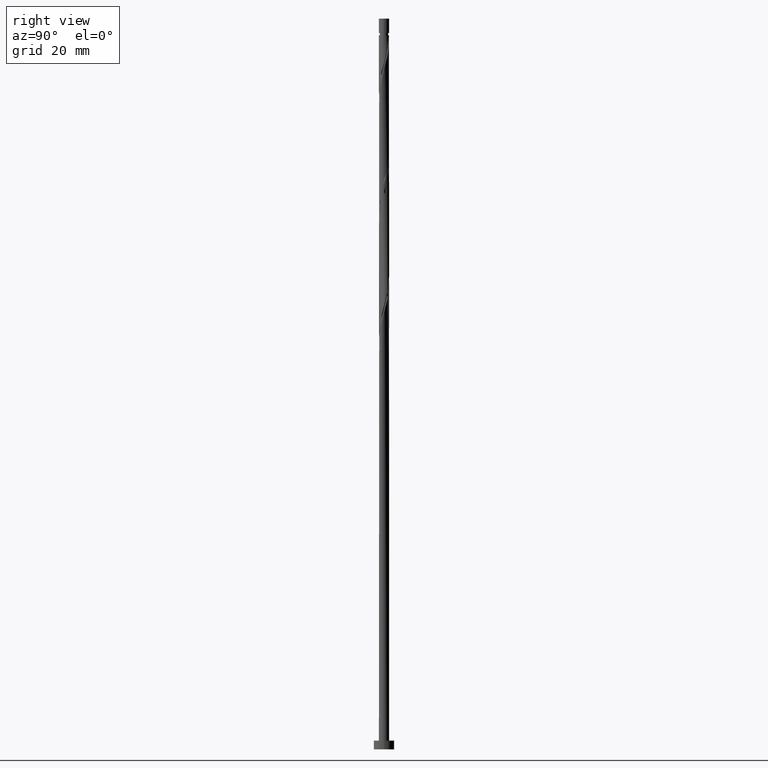
[diagram: clean part render]
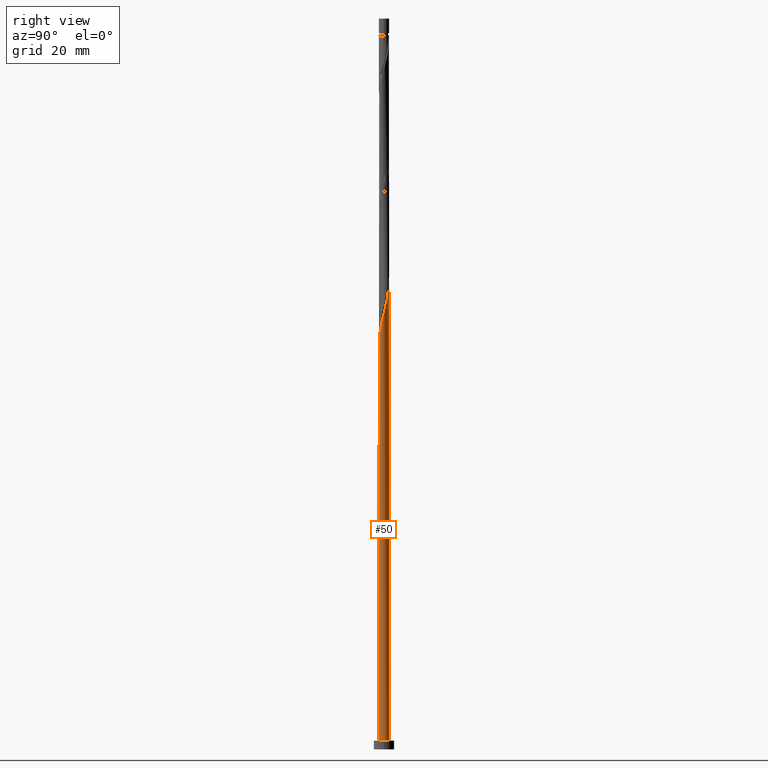
[diagram: same view with one face highlighted and labeled with its STEP entity id]
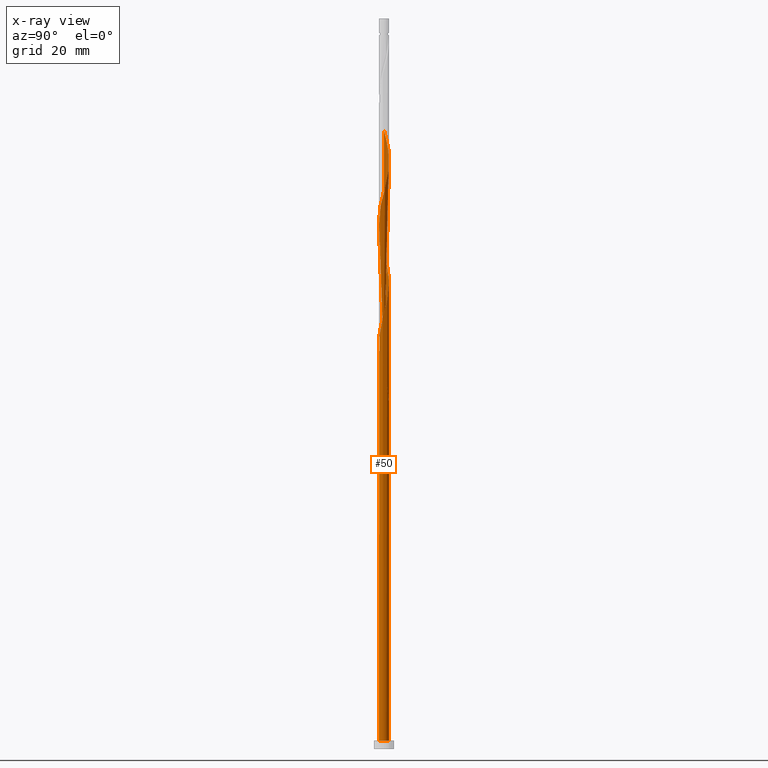
[diagram: x-ray of the same camera — body ghosted, the highlighted face saturated]
A machine part, right view. The second image highlights one B-rep face of the part: STEP entity #50.
The next image is the same camera in x-ray: the body ghosted, the highlighted face saturated — about 0% of this face is hidden behind the body in this view.
In plain terms, the highlighted cylindrical surface (bore or boss wall) has radius 1.75 mm, axis along (-0, -0, -1).
Its self-contained STEP definition (entity closure, byte-faithful):
#6 = FACE_OUTER_BOUND ( 'NONE', #1176, .T. ) ;
#7 = CARTESIAN_POINT ( 'NONE',  ( 1.270091953611735880, -1.222504715543140774, 144.1536403940529567 ) ) ;
#10 = AXIS2_PLACEMENT_3D ( 'NONE', #86, #376, #1649 ) ;
#14 = CARTESIAN_POINT ( 'NONE',  ( -1.727042448915866224, 0.2825320860410301393, 168.9933839837966048 ) ) ;
#21 = CARTESIAN_POINT ( 'NONE',  ( 1.213591279746393026, 1.260831553270904237, 154.5703070607196707 ) ) ;
#28 = CARTESIAN_POINT ( 'NONE',  ( 0.2846071929171890003, 1.739727017636470974, 158.5767173171299476 ) ) ;
#34 = CARTESIAN_POINT ( 'NONE',  ( -0.7485525829283007360, 1.581824589071549880, 162.5831275735401675 ) ) ;
#38 = ORIENTED_EDGE ( 'NONE', *, *, #1209, .F. ) ;
#44 = CARTESIAN_POINT ( 'NONE',  ( -0.3482456029873183811, 1.715000000000001856, 202.6472301376427083 ) ) ;
#50 = ADVANCED_FACE ( 'NONE', ( #6 ), #365, .T. ) ;
#55 = CARTESIAN_POINT ( 'NONE',  ( -0.4886440724827074145, -1.680394885265818372, 178.6087685991812180 ) ) ;
#62 = CARTESIAN_POINT ( 'NONE',  ( -1.727042448915866224, 0.2825320860410301393, 127.3267173171299049 ) ) ;
#63 = CARTESIAN_POINT ( 'NONE',  ( 0.9406208616431048775, -1.490933849906250108, 184.2177429581555259 ) ) ;
#76 = ORIENTED_EDGE ( 'NONE', *, *, #1106, .T. ) ;
#86 = CARTESIAN_POINT ( 'NONE',  ( 0.000000000000000000, 0.000000000000000000, 3.000000000000000000 ) ) ;
#132 = CARTESIAN_POINT ( 'NONE',  ( -1.480063263495110526, -0.9337626765148684393, 132.1344096248222684 ) ) ;
#138 = DIRECTION ( 'NONE',  ( -1.000000000000000000, 0.000000000000000000, 0.000000000000000000 ) ) ;
#139 = CARTESIAN_POINT ( 'NONE',  ( 0.5564843042134953732, -1.672715328236850096, 140.9485121889247523 ) ) ;
#146 = CARTESIAN_POINT ( 'NONE',  ( -1.744472087975769359, -0.1389860938132595758, 170.5959480863606927 ) ) ;
#154 = CARTESIAN_POINT ( 'NONE',  ( -1.692736842704841704, 0.4922330052974239756, 209.8587685991811327 ) ) ;
#155 = CARTESIAN_POINT ( 'NONE',  ( -1.213591279746392804, -1.260831553270904459, 133.7369737273863279 ) ) ;
#159 = VERTEX_POINT ( 'NONE', #1321 ) ;
#162 = CARTESIAN_POINT ( 'NONE',  ( -1.105356407627421156, 1.356719282724694997, 205.8523583427709980 ) ) ;
#163 = CARTESIAN_POINT ( 'NONE',  ( 0.4886440724827083026, 1.680394885265818372, 157.7754352658478751 ) ) ;
#172 = CARTESIAN_POINT ( 'NONE',  ( 1.060498612039037392, 1.408188213278951606, 197.0382557786683151 ) ) ;
#184 = CARTESIAN_POINT ( 'NONE',  ( 1.525749917832862179, -0.8830280507365014797, 187.4228711632837587 ) ) ;
#196 = CARTESIAN_POINT ( 'NONE',  ( 0.5564843042134953732, -1.672715328236850096, 182.6151788555914095 ) ) ;
#199 = VERTEX_POINT ( 'NONE', #496 ) ;
#216 = VERTEX_POINT ( 'NONE', #1150 ) ;
#223 =( BOUNDED_CURVE ( )  B_SPLINE_CURVE ( 2, ( #1706, #1697, #626, #502, #1679, #788, #386, #511, #1034, #494, #1717, #771, #910, #1558, #1583, #894, #1450 ),
 .UNSPECIFIED., .F., .F. ) 
 B_SPLINE_CURVE_WITH_KNOTS ( ( 3, 2, 2, 2, 2, 2, 2, 2, 3 ),
 ( 0.9295271625973833274, 0.9326923076923077094, 0.9423076923076922906, 0.9519230769230768718, 0.9615384615384615641, 0.9711538461538461453, 0.9807692307692307265, 0.9903846153846154188, 1.000000000000000000 ),
 .UNSPECIFIED. ) 
 CURVE ( )  GEOMETRIC_REPRESENTATION_ITEM ( )  RATIONAL_B_SPLINE_CURVE ( ( 0.9061636035683048318, 0.9069090390690934811, 0.9090909090909500279, 0.9024626128164534578, 0.9090909090909500279, 0.9024626128164534578, 0.9090909090909500279, 0.9024626128164534578, 0.9090909090909500279, 0.9024626128164534578, 0.9090909090909500279, 0.9024626128164534578, 0.9090909090909500279, 0.9024626128164534578, 0.9090909090909500279, 0.9024626128164534578, 0.9090909090909500279 ) ) 
 REPRESENTATION_ITEM ( '' )  );
#257 = LINE ( 'NONE', #378, #1202 ) ;
#276 = CARTESIAN_POINT ( 'NONE',  ( 0.07230014557802495745, 1.748505844699812517, 159.3779993684119916 ) ) ;
#283 = CARTESIAN_POINT ( 'NONE',  ( -1.692736842704841704, 0.4922330052974239756, 168.1921019325145039 ) ) ;
#287 = VERTEX_POINT ( 'NONE', #879 ) ;
#292 = CARTESIAN_POINT ( 'NONE',  ( -1.750000000000002220, -1.824624501060920132E-15, 128.4026415950841624 ) ) ;
#293 = CARTESIAN_POINT ( 'NONE',  ( -1.366683947453748882, -1.113474893262856202, 174.6023583427709127 ) ) ;
#302 = CARTESIAN_POINT ( 'NONE',  ( -1.660519350180560405, -0.5524269070890180933, 172.1985121889247807 ) ) ;
#309 = CARTESIAN_POINT ( 'NONE',  ( -1.750000000000002442, 0.1421987674398286494, 211.1962741910691364 ) ) ;
#310 = CARTESIAN_POINT ( 'NONE',  ( 0.7485525829283004029, -1.581824589071549880, 141.7497942402068816 ) ) ;
#313 = ORIENTED_EDGE ( 'NONE', *, *, #651, .F. ) ;
#318 = CARTESIAN_POINT ( 'NONE',  ( -0.9406208616431052105, 1.490933849906250108, 205.0510762914888687 ) ) ;
#328 = CARTESIAN_POINT ( 'NONE',  ( 0.6926809520482259952, 1.621062752895165771, 198.6408198812324315 ) ) ;
#329 = DIRECTION ( 'NONE',  ( -0.000000000000000000, -0.000000000000000000, -1.000000000000000000 ) ) ;
#350 = ORIENTED_EDGE ( 'NONE', *, *, #851, .F. ) ;
#365 = CYLINDRICAL_SURFACE ( 'NONE', #1701, 1.750000000000000000 ) ;
#376 = DIRECTION ( 'NONE',  ( 0.000000000000000000, 0.000000000000000000, 1.000000000000000000 ) ) ;
#378 = CARTESIAN_POINT ( 'NONE',  ( -1.750000000000000000, 0.000000000000000000, 250.0000000000000000 ) ) ;
#381 = CARTESIAN_POINT ( 'NONE',  ( 0.000000000000000000, 0.000000000000000000, 119.3138968043094224 ) ) ;
#386 = CARTESIAN_POINT ( 'NONE',  ( -1.480063263495108306, 0.9337626765148677732, 127.3267173171299049 ) ) ;
#397 = AXIS2_PLACEMENT_3D ( 'NONE', #937, #699, #946 ) ;
#404 = CARTESIAN_POINT ( 'NONE',  ( 1.727042448915866224, -0.2825320860410303059, 148.1600506504632904 ) ) ;
#410 = CARTESIAN_POINT ( 'NONE',  ( -1.366683947453748882, -1.113474893262856202, 132.9356916761042555 ) ) ;
#417 = CARTESIAN_POINT ( 'NONE',  ( -1.727596120824647974, -0.3508033544111553992, 171.3972301376427367 ) ) ;
#423 = CIRCLE ( 'NONE', #397, 1.750000000000000000 ) ;
#428 = CARTESIAN_POINT ( 'NONE',  ( 1.761348055126890078, -0.07283116678463578963, 148.9613327017453059 ) ) ;
#431 = ORIENTED_EDGE ( 'NONE', *, *, #651, .T. ) ;
#435 = CARTESIAN_POINT ( 'NONE',  ( -1.525749917832862623, 0.8830280507365010356, 166.5895378299503875 ) ) ;
#442 = CARTESIAN_POINT ( 'NONE',  ( -1.525749917832862623, 0.8830280507365010356, 124.9228711632837445 ) ) ;
#443 = CARTESIAN_POINT ( 'NONE',  ( 1.366683947453749326, 1.113474893262855092, 195.4356916761042271 ) ) ;
#446 = ORIENTED_EDGE ( 'NONE', *, *, #1270, .F. ) ;
#452 = CARTESIAN_POINT ( 'NONE',  ( -1.692736842704841704, 0.4922330052974239756, 126.5254352658478325 ) ) ;
#453 = CARTESIAN_POINT ( 'NONE',  ( 1.593442579536471948, 0.7540504597668808984, 193.8331275735401107 ) ) ;
#466 = EDGE_CURVE ( 'NONE', #199, #1366, #1145, .T. ) ;
#482 = AXIS2_PLACEMENT_3D ( 'NONE', #381, #1313, #901 ) ;
#494 = CARTESIAN_POINT ( 'NONE',  ( -1.060498612039034283, 1.408188213278950718, 124.9228711632837445 ) ) ;
#496 = CARTESIAN_POINT ( 'NONE',  ( -1.750000000000000000, 0.000000000000000000, 3.000000000000000000 ) ) ;
#502 = CARTESIAN_POINT ( 'NONE',  ( -1.727596120824645975, 0.3508033544111552882, 129.7305634709760511 ) ) ;
#511 = CARTESIAN_POINT ( 'NONE',  ( -1.366683947453746883, 1.113474893262854870, 126.5254352658478609 ) ) ;
#537 = CARTESIAN_POINT ( 'NONE',  ( -0.2846071929171888337, -1.739727017636470974, 137.7433839837966048 ) ) ;
#542 = CARTESIAN_POINT ( 'NONE',  ( -1.761348055126890078, 0.07283116678463590066, 169.7946660350785635 ) ) ;
#547 = CARTESIAN_POINT ( 'NONE',  ( -0.4886440724827074145, -1.680394885265818372, 136.9421019325145608 ) ) ;
#553 = CARTESIAN_POINT ( 'NONE',  ( -1.750000000000002665, -2.019051701993640766E-16, 211.7359749284175336 ) ) ;
#554 = CARTESIAN_POINT ( 'NONE',  ( -0.8765897820436314714, -1.514625483087058910, 177.0062044966170163 ) ) ;
#562 = CARTESIAN_POINT ( 'NONE',  ( 1.609243380268852386, -0.6876305280169626721, 146.5574865478992024 ) ) ;
#569 = CARTESIAN_POINT ( 'NONE',  ( -0.5564843042134957063, 1.672715328236850096, 203.4485121889247523 ) ) ;
#579 = CARTESIAN_POINT ( 'NONE',  ( 1.761348055126890078, -0.07283116678463578963, 190.6279993684119916 ) ) ;
#583 = ORIENTED_EDGE ( 'NONE', *, *, #950, .F. ) ;
#590 = CARTESIAN_POINT ( 'NONE',  ( 1.397920935722299252, -1.052766383139821516, 186.6215891120017432 ) ) ;
#626 = CARTESIAN_POINT ( 'NONE',  ( -1.744472087975766694, 0.1389860938132602142, 130.5318455222581235 ) ) ;
#643 = ORIENTED_EDGE ( 'NONE', *, *, #466, .T. ) ;
#651 = EDGE_CURVE ( 'NONE', #1246, #199, #719, .T. ) ;
#659 = CARTESIAN_POINT ( 'NONE',  ( 0.9406208616431048775, -1.490933849906250108, 142.5510762914888687 ) ) ;
#667 = CARTESIAN_POINT ( 'NONE',  ( 1.727596120824647974, 0.3508033544111552327, 150.5638968043093939 ) ) ;
#676 = CARTESIAN_POINT ( 'NONE',  ( -1.660519350180560405, -0.5524269070890180933, 130.5318455222580951 ) ) ;
#685 = CARTESIAN_POINT ( 'NONE',  ( 1.525749917832862179, -0.8830280507365014797, 145.7562044966170731 ) ) ;
#690 = CARTESIAN_POINT ( 'NONE',  ( -1.727042448915866224, 0.2825320860410301393, 210.6600506504632335 ) ) ;
#691 = CARTESIAN_POINT ( 'NONE',  ( -0.5564843042134957063, 1.672715328236850096, 161.7818455222581235 ) ) ;
#699 = DIRECTION ( 'NONE',  ( 0.000000000000000000, 0.000000000000000000, 1.000000000000000000 ) ) ;
#700 = CARTESIAN_POINT ( 'NONE',  ( -0.1400069017611407229, 1.757284671763154282, 201.8459480863606927 ) ) ;
#708 = CARTESIAN_POINT ( 'NONE',  ( 1.692736842704841704, -0.4922330052974249748, 189.0254352658478467 ) ) ;
#717 = CARTESIAN_POINT ( 'NONE',  ( -0.5564843042134957063, 1.672715328236850096, 120.1151788555914521 ) ) ;
#718 = CARTESIAN_POINT ( 'NONE',  ( 0.1400069017611409727, -1.757284671763154282, 181.0126147530273215 ) ) ;
#719 = LINE ( 'NONE', #1517, #863 ) ;
#747 = DIRECTION ( 'NONE',  ( -0.000000000000000000, -0.000000000000000000, -1.000000000000000000 ) ) ;
#771 = CARTESIAN_POINT ( 'NONE',  ( -0.6926809520482244409, 1.621062752895163994, 123.3203070607196423 ) ) ;
#788 = CARTESIAN_POINT ( 'NONE',  ( -1.593442579536469728, 0.7540504597668805653, 128.1279993684119631 ) ) ;
#795 = CARTESIAN_POINT ( 'NONE',  ( -0.3482456029873183811, 1.715000000000001856, 160.9805634709760227 ) ) ;
#802 = CARTESIAN_POINT ( 'NONE',  ( -0.6926809520482259952, -1.621062752895165771, 136.1408198812324883 ) ) ;
#810 = CARTESIAN_POINT ( 'NONE',  ( -1.213591279746392804, -1.260831553270904459, 175.4036403940529851 ) ) ;
#819 = CARTESIAN_POINT ( 'NONE',  ( -1.270091953611735880, 1.222504715543140552, 164.9869737273862995 ) ) ;
#827 = CARTESIAN_POINT ( 'NONE',  ( 1.105356407627421156, -1.356719282724694997, 143.3523583427709696 ) ) ;
#837 = CARTESIAN_POINT ( 'NONE',  ( -1.609243380268852386, 0.6876305280169626721, 125.7241532145658454 ) ) ;
#838 = CARTESIAN_POINT ( 'NONE',  ( 0.7485525829283004029, -1.581824589071549880, 183.4164609068734819 ) ) ;
#848 = CARTESIAN_POINT ( 'NONE',  ( 1.105356407627421156, -1.356719282724694997, 185.0190250094376836 ) ) ;
#851 = EDGE_CURVE ( 'NONE', #287, #1404, #223, .T. ) ;
#863 = VECTOR ( 'NONE', #329, 1000.000000000000000 ) ;
#878 = CARTESIAN_POINT ( 'NONE',  ( 0.000000000000000000, 0.000000000000000000, 250.0000000000000000 ) ) ;
#879 = CARTESIAN_POINT ( 'NONE',  ( -1.749999999999999556, -2.407906103859098896E-15, 131.0584853468679398 ) ) ;
#894 = CARTESIAN_POINT ( 'NONE',  ( 0.1400069017611417777, 1.757284671763150952, 120.1151788555914237 ) ) ;
#901 = DIRECTION ( 'NONE',  ( 0.000000000000000000, 1.000000000000000000, -2.379049338482478211E-14 ) ) ;
#905 = EDGE_CURVE ( 'NONE', #216, #1404, #1284, .T. ) ;
#910 = CARTESIAN_POINT ( 'NONE',  ( -0.4886440724827061377, 1.680394885265816152, 122.5190250094376125 ) ) ;
#912 = CARTESIAN_POINT ( 'NONE',  ( 0.3482456029873189918, 1.714999999999999636, 119.3138968043093939 ) ) ;
#925 = CARTESIAN_POINT ( 'NONE',  ( 1.060498612039037392, 1.408188213278951606, 155.3715891120016579 ) ) ;
#930 = CARTESIAN_POINT ( 'NONE',  ( 1.593442579536471948, 0.7540504597668808984, 152.1664609068735103 ) ) ;
#937 = CARTESIAN_POINT ( 'NONE',  ( 0.000000000000000000, 0.000000000000000000, 3.000000000000000000 ) ) ;
#938 = CARTESIAN_POINT ( 'NONE',  ( -1.593442579536471726, -0.7540504597668812314, 172.9997942402068247 ) ) ;
#946 = DIRECTION ( 'NONE',  ( 1.000000000000000000, 0.000000000000000000, 0.000000000000000000 ) ) ;
#947 = CARTESIAN_POINT ( 'NONE',  ( 1.744472087975769581, 0.1389860938132589652, 149.7626147530273499 ) ) ;
#950 = EDGE_CURVE ( 'NONE', #1246, #159, #985, .T. ) ;
#954 = CARTESIAN_POINT ( 'NONE',  ( -1.750000000000002220, -0.06960297808934358399, 128.6668125107171363 ) ) ;
#959 = CARTESIAN_POINT ( 'NONE',  ( -1.270091953611735880, 1.222504715543140552, 206.6536403940529851 ) ) ;
#960 = CARTESIAN_POINT ( 'NONE',  ( 1.213591279746393026, 1.260831553270904237, 196.2369737273863279 ) ) ;
#971 = CARTESIAN_POINT ( 'NONE',  ( -1.397920935722299252, 1.052766383139820849, 207.4549224453350291 ) ) ;
#972 = CARTESIAN_POINT ( 'NONE',  ( 0.2846071929171890003, 1.739727017636470974, 200.2433839837965195 ) ) ;
#985 =( BOUNDED_CURVE ( )  B_SPLINE_CURVE ( 2, ( #1072, #954, #1619, #1065, #676, #1226, #132, #410, #155, #1494, #1596, #802, #547, #537, #1092, #1060, #1591, #139, #310, #659, #827, #7, #1193, #685, #562, #1603, #404, #428, #947, #667, #1210, #930, #1217, #1353, #21, #925, #1336, #1466, #163, #28, #276, #1472, #795, #691, #34, #1082, #1331, #819, #1201, #435, #1487, #283, #14, #542, #146, #417, #302, #938, #1477, #293, #810, #1347, #554, #1611, #55, #1374, #1120, #718, #1361, #196, #838, #63, #848, #1098, #590, #184, #1628, #708, #1253, #579, #1516, #1382, #1109, #453, #1243, #443, #960, #172, #1646, #328, #1636, #972, #1234, #700, #44, #569, #1502, #318, #162, #959, #971, #1618, #1091, #154, #690, #309, #553 ),
 .UNSPECIFIED., .F., .F. ) 
 B_SPLINE_CURVE_WITH_KNOTS ( ( 3, 2, 2, 2, 2, 2, 2, 2, 2, 2, 2, 2, 2, 2, 2, 2, 2, 2, 2, 2, 2, 2, 2, 2, 2, 2, 2, 2, 2, 2, 2, 2, 2, 2, 2, 2, 2, 2, 2, 2, 2, 2, 2, 2, 2, 2, 2, 2, 2, 2, 2, 2, 2, 3 ),
 ( 0.05452716259738323024, 0.05769230769230770939, 0.06730769230769229061, 0.07692307692307687184, 0.08653846153846156408, 0.09615384615384614531, 0.1057692307692307265, 0.1153846153846154188, 0.1250000000000000000, 0.1346153846153845812, 0.1442307692307692735, 0.1538461538461538547, 0.1634615384615384359, 0.1730769230769231282, 0.1826923076923077094, 0.1923076923076922906, 0.2019230769230768718, 0.2115384615384615641, 0.2211538461538461453, 0.2307692307692307265, 0.2403846153846154188, 0.2500000000000000000, 0.2596153846153845812, 0.2692307692307692735, 0.2788461538461538547, 0.2884615384615384359, 0.2980769230769231282, 0.3076923076923077094, 0.3173076923076922906, 0.3269230769230768718, 0.3365384615384615641, 0.3461538461538461453, 0.3557692307692307265, 0.3653846153846154188, 0.3750000000000000000, 0.3846153846153845812, 0.3942307692307692735, 0.4038461538461538547, 0.4134615384615384359, 0.4230769230769231282, 0.4326923076923077094, 0.4423076923076922906, 0.4519230769230768718, 0.4615384615384615641, 0.4711538461538461453, 0.4807692307692307265, 0.4903846153846154188, 0.5000000000000000000, 0.5096153846153845812, 0.5192307692307691624, 0.5288461538461538547, 0.5384615384615384359, 0.5480769230769231282, 0.5545271625973833274 ),
 .UNSPECIFIED. ) 
 CURVE ( )  GEOMETRIC_REPRESENTATION_ITEM ( )  RATIONAL_B_SPLINE_CURVE ( ( 0.9061636035683109380, 0.9069090390690994763, 0.9090909090909560231, 0.9024626128164594530, 0.9090909090909560231, 0.9024626128164594530, 0.9090909090909560231, 0.9024626128164594530, 0.9090909090909560231, 0.9024626128164594530, 0.9090909090909560231, 0.9024626128164594530, 0.9090909090909560231, 0.9024626128164594530, 0.9090909090909560231, 0.9024626128164594530, 0.9090909090909560231, 0.9024626128164594530, 0.9090909090909560231, 0.9024626128164594530, 0.9090909090909560231, 0.9024626128164594530, 0.9090909090909560231, 0.9024626128164594530, 0.9090909090909560231, 0.9024626128164594530, 0.9090909090909560231, 0.9024626128164594530, 0.9090909090909560231, 0.9024626128164594530, 0.9090909090909560231, 0.9024626128164594530, 0.9090909090909560231, 0.9024626128164594530, 0.9090909090909560231, 0.9024626128164594530, 0.9090909090909560231, 0.9024626128164594530, 0.9090909090909560231, 0.9024626128164594530, 0.9090909090909560231, 0.9024626128164594530, 0.9090909090909560231, 0.9024626128164594530, 0.9090909090909560231, 0.9024626128164594530, 0.9090909090909560231, 0.9024626128164594530, 0.9090909090909560231, 0.9024626128164594530, 0.9090909090909560231, 0.9024626128164594530, 0.9090909090909560231, 0.9024626128164594530, 0.9090909090909560231, 0.9024626128164594530, 0.9090909090909560231, 0.9024626128164594530, 0.9090909090909560231, 0.9024626128164594530, 0.9090909090909560231, 0.9024626128164594530, 0.9090909090909560231, 0.9024626128164594530, 0.9090909090909560231, 0.9024626128164594530, 0.9090909090909560231, 0.9024626128164594530, 0.9090909090909560231, 0.9024626128164594530, 0.9090909090909560231, 0.9024626128164594530, 0.9090909090909560231, 0.9024626128164594530, 0.9090909090909560231, 0.9024626128164594530, 0.9090909090909560231, 0.9024626128164594530, 0.9090909090909560231, 0.9024626128164594530, 0.9090909090909560231, 0.9024626128164594530, 0.9090909090909560231, 0.9024626128164594530, 0.9090909090909560231, 0.9024626128164594530, 0.9090909090909560231, 0.9024626128164594530, 0.9090909090909560231, 0.9024626128164594530, 0.9090909090909560231, 0.9024626128164594530, 0.9090909090909560231, 0.9024626128164594530, 0.9090909090909560231, 0.9024626128164594530, 0.9090909090909560231, 0.9024626128164594530, 0.9090909090909560231, 0.9024626128164594530, 0.9090909090909560231, 0.9024626128164594530, 0.9090909090909560231, 0.9024626128164594530, 0.9090909090909560231, 0.9046444828383159997, 0.9061636035683107160 ) ) 
 REPRESENTATION_ITEM ( '' )  );
#1034 = CARTESIAN_POINT ( 'NONE',  ( -1.213591279746390583, 1.260831553270903349, 125.7241532145658454 ) ) ;
#1060 = CARTESIAN_POINT ( 'NONE',  ( 0.1400069017611409727, -1.757284671763154282, 139.3459480863606643 ) ) ;
#1065 = CARTESIAN_POINT ( 'NONE',  ( -1.727596120824647974, -0.3508033544111553992, 129.7305634709760511 ) ) ;
#1072 = CARTESIAN_POINT ( 'NONE',  ( -1.750000000000002220, -1.824624501060920132E-15, 128.4026415950841624 ) ) ;
#1082 = CARTESIAN_POINT ( 'NONE',  ( -0.9406208616431052105, 1.490933849906250108, 163.3844096248221831 ) ) ;
#1091 = CARTESIAN_POINT ( 'NONE',  ( -1.609243380268852386, 0.6876305280169626721, 209.0574865478991171 ) ) ;
#1092 = CARTESIAN_POINT ( 'NONE',  ( -0.07230014557802395825, -1.748505844699812295, 138.5446660350786487 ) ) ;
#1097 = CARTESIAN_POINT ( 'NONE',  ( -0.3482456029873183256, 1.715000000000001856, 119.3138968043093939 ) ) ;
#1098 = CARTESIAN_POINT ( 'NONE',  ( 1.270091953611735880, -1.222504715543140774, 185.8203070607196707 ) ) ;
#1106 = EDGE_CURVE ( 'NONE', #1366, #199, #423, .T. ) ;
#1109 = CARTESIAN_POINT ( 'NONE',  ( 1.660519350180560849, 0.5524269070890172051, 193.0318455222580951 ) ) ;
#1120 = CARTESIAN_POINT ( 'NONE',  ( -0.07230014557802395825, -1.748505844699812295, 180.2113327017453344 ) ) ;
#1145 = CIRCLE ( 'NONE', #10, 1.750000000000000000 ) ;
#1150 = CARTESIAN_POINT ( 'NONE',  ( -0.3482456029873183256, 1.715000000000001856, 119.3138968043093939 ) ) ;
#1176 = EDGE_LOOP ( 'NONE', ( #446, #583, #431, #643, #76, #313, #38, #1357, #350 ) ) ;
#1193 = CARTESIAN_POINT ( 'NONE',  ( 1.397920935722299252, -1.052766383139821516, 144.9549224453350007 ) ) ;
#1201 = CARTESIAN_POINT ( 'NONE',  ( -1.397920935722299252, 1.052766383139820849, 165.7882557786683719 ) ) ;
#1202 = VECTOR ( 'NONE', #1446, 1000.000000000000000 ) ;
#1209 = EDGE_CURVE ( 'NONE', #216, #1246, #1480, .T. ) ;
#1210 = CARTESIAN_POINT ( 'NONE',  ( 1.660519350180560849, 0.5524269070890172051, 151.3651788555914379 ) ) ;
#1216 = CARTESIAN_POINT ( 'NONE',  ( -0.9406208616431052105, 1.490933849906250108, 121.7177429581555259 ) ) ;
#1217 = CARTESIAN_POINT ( 'NONE',  ( 1.480063263495110526, 0.9337626765148685504, 152.9677429581556396 ) ) ;
#1226 = CARTESIAN_POINT ( 'NONE',  ( -1.593442579536471726, -0.7540504597668812314, 131.3331275735401675 ) ) ;
#1234 = CARTESIAN_POINT ( 'NONE',  ( 0.07230014557802495745, 1.748505844699812517, 201.0446660350786487 ) ) ;
#1242 = CARTESIAN_POINT ( 'NONE',  ( -1.270091953611735880, 1.222504715543140552, 123.3203070607196423 ) ) ;
#1243 = CARTESIAN_POINT ( 'NONE',  ( 1.480063263495110526, 0.9337626765148685504, 194.6344096248222399 ) ) ;
#1246 = VERTEX_POINT ( 'NONE', #1469 ) ;
#1253 = CARTESIAN_POINT ( 'NONE',  ( 1.727042448915866224, -0.2825320860410303059, 189.8267173171299191 ) ) ;
#1270 = EDGE_CURVE ( 'NONE', #159, #287, #257, .T. ) ;
#1284 = CIRCLE ( 'NONE', #482, 1.750000000000000000 ) ;
#1313 = DIRECTION ( 'NONE',  ( 0.000000000000000000, -1.982541115402067279E-14, -1.000000000000000000 ) ) ;
#1321 = CARTESIAN_POINT ( 'NONE',  ( -1.750000000000002665, -2.019051701993640766E-16, 211.7359749284175336 ) ) ;
#1331 = CARTESIAN_POINT ( 'NONE',  ( -1.105356407627421156, 1.356719282724694997, 164.1856916761042839 ) ) ;
#1336 = CARTESIAN_POINT ( 'NONE',  ( 0.8765897820436315824, 1.514625483087058688, 156.1728711632837303 ) ) ;
#1347 = CARTESIAN_POINT ( 'NONE',  ( -1.060498612039037170, -1.408188213278952494, 176.2049224453350291 ) ) ;
#1352 = CARTESIAN_POINT ( 'NONE',  ( -1.397920935722299252, 1.052766383139820849, 124.1215891120017147 ) ) ;
#1353 = CARTESIAN_POINT ( 'NONE',  ( 1.366683947453749326, 1.113474893262855092, 153.7690250094375983 ) ) ;
#1357 = ORIENTED_EDGE ( 'NONE', *, *, #905, .T. ) ;
#1361 = CARTESIAN_POINT ( 'NONE',  ( 0.3482456029873186587, -1.715000000000001856, 181.8138968043093939 ) ) ;
#1366 = VERTEX_POINT ( 'NONE', #1438 ) ;
#1373 = CARTESIAN_POINT ( 'NONE',  ( -1.105356407627421156, 1.356719282724694997, 122.5190250094376125 ) ) ;
#1374 = CARTESIAN_POINT ( 'NONE',  ( -0.2846071929171888337, -1.739727017636470974, 179.4100506504632619 ) ) ;
#1382 = CARTESIAN_POINT ( 'NONE',  ( 1.727596120824647974, 0.3508033544111552327, 192.2305634709760511 ) ) ;
#1404 = VERTEX_POINT ( 'NONE', #912 ) ;
#1438 = CARTESIAN_POINT ( 'NONE',  ( 1.750000000000000000, 0.000000000000000000, 3.000000000000000000 ) ) ;
#1446 = DIRECTION ( 'NONE',  ( -0.000000000000000000, -0.000000000000000000, -1.000000000000000000 ) ) ;
#1450 = CARTESIAN_POINT ( 'NONE',  ( 0.3482456029873189918, 1.714999999999999636, 119.3138968043093939 ) ) ;
#1466 = CARTESIAN_POINT ( 'NONE',  ( 0.6926809520482259952, 1.621062752895165771, 156.9741532145658027 ) ) ;
#1469 = CARTESIAN_POINT ( 'NONE',  ( -1.750000000000002220, -1.824624501060920132E-15, 128.4026415950841624 ) ) ;
#1472 = CARTESIAN_POINT ( 'NONE',  ( -0.1400069017611407229, 1.757284671763154282, 160.1792814196939787 ) ) ;
#1477 = CARTESIAN_POINT ( 'NONE',  ( -1.480063263495110526, -0.9337626765148684393, 173.8010762914889256 ) ) ;
#1480 =( BOUNDED_CURVE ( )  B_SPLINE_CURVE ( 2, ( #1097, #717, #1627, #1216, #1373, #1242, #1352, #442, #837, #452, #62, #1602, #292 ),
 .UNSPECIFIED., .F., .F. ) 
 B_SPLINE_CURVE_WITH_KNOTS ( ( 3, 2, 2, 2, 2, 2, 3 ),
 ( 0.000000000000000000, 0.009615384615384581224, 0.01923076923076927347, 0.02884615384615385816, 0.03846153846153843592, 0.04807692307692312816, 0.05452716259738323024 ),
 .UNSPECIFIED. ) 
 CURVE ( )  GEOMETRIC_REPRESENTATION_ITEM ( )  RATIONAL_B_SPLINE_CURVE ( ( 0.9090909090909560231, 0.9024626128164594530, 0.9090909090909560231, 0.9024626128164594530, 0.9090909090909560231, 0.9024626128164594530, 0.9090909090909560231, 0.9024626128164594530, 0.9090909090909560231, 0.9024626128164594530, 0.9090909090909560231, 0.9046444828383161108, 0.9061636035683109380 ) ) 
 REPRESENTATION_ITEM ( '' )  );
#1487 = CARTESIAN_POINT ( 'NONE',  ( -1.609243380268852386, 0.6876305280169626721, 167.3908198812324315 ) ) ;
#1494 = CARTESIAN_POINT ( 'NONE',  ( -1.060498612039037170, -1.408188213278952494, 134.5382557786684004 ) ) ;
#1502 = CARTESIAN_POINT ( 'NONE',  ( -0.7485525829283007360, 1.581824589071549880, 204.2497942402068247 ) ) ;
#1516 = CARTESIAN_POINT ( 'NONE',  ( 1.744472087975769581, 0.1389860938132589652, 191.4292814196940640 ) ) ;
#1517 = CARTESIAN_POINT ( 'NONE',  ( -1.750000000000000000, 0.000000000000000000, 250.0000000000000000 ) ) ;
#1558 = CARTESIAN_POINT ( 'NONE',  ( -0.2846071929171876680, 1.739727017636468087, 121.7177429581555259 ) ) ;
#1583 = CARTESIAN_POINT ( 'NONE',  ( -0.07230014557802298680, 1.748505844699809852, 120.9164609068735103 ) ) ;
#1591 = CARTESIAN_POINT ( 'NONE',  ( 0.3482456029873186587, -1.715000000000001856, 140.1472301376427652 ) ) ;
#1596 = CARTESIAN_POINT ( 'NONE',  ( -0.8765897820436314714, -1.514625483087058910, 135.3395378299504443 ) ) ;
#1602 = CARTESIAN_POINT ( 'NONE',  ( -1.750000000000001998, 0.1421987674398307866, 127.8629408577358362 ) ) ;
#1603 = CARTESIAN_POINT ( 'NONE',  ( 1.692736842704841704, -0.4922330052974249748, 147.3587685991811611 ) ) ;
#1611 = CARTESIAN_POINT ( 'NONE',  ( -0.6926809520482259952, -1.621062752895165771, 177.8074865478991740 ) ) ;
#1618 = CARTESIAN_POINT ( 'NONE',  ( -1.525749917832862623, 0.8830280507365010356, 208.2562044966170447 ) ) ;
#1619 = CARTESIAN_POINT ( 'NONE',  ( -1.744472087975769359, -0.1389860938132595758, 128.9292814196940071 ) ) ;
#1627 = CARTESIAN_POINT ( 'NONE',  ( -0.7485525829283007360, 1.581824589071549880, 120.9164609068735246 ) ) ;
#1628 = CARTESIAN_POINT ( 'NONE',  ( 1.609243380268852386, -0.6876305280169626721, 188.2241532145657743 ) ) ;
#1636 = CARTESIAN_POINT ( 'NONE',  ( 0.4886440724827083026, 1.680394885265818372, 199.4421019325145608 ) ) ;
#1646 = CARTESIAN_POINT ( 'NONE',  ( 0.8765897820436315824, 1.514625483087058688, 197.8395378299504443 ) ) ;
#1649 = DIRECTION ( 'NONE',  ( 1.000000000000000000, 0.000000000000000000, 0.000000000000000000 ) ) ;
#1679 = CARTESIAN_POINT ( 'NONE',  ( -1.660519350180557518, 0.5524269070890182043, 128.9292814196940071 ) ) ;
#1697 = CARTESIAN_POINT ( 'NONE',  ( -1.749999999999999778, 0.06960297808934630404, 130.7943144312349659 ) ) ;
#1701 = AXIS2_PLACEMENT_3D ( 'NONE', #878, #747, #138 ) ;
#1706 = CARTESIAN_POINT ( 'NONE',  ( -1.749999999999999556, -2.407906103859098896E-15, 131.0584853468679398 ) ) ;
#1717 = CARTESIAN_POINT ( 'NONE',  ( -0.8765897820436293619, 1.514625483087057578, 124.1215891120017147 ) ) ;